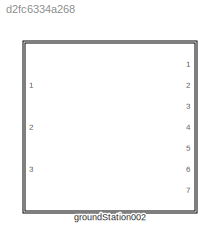
MODEL slx_d2fc6334a268
KIND library
CONFIG AbsTol = auto
CONFIG EnableMultiTasking = off
CONFIG FixedStep = auto
CONFIG MaxStep = auto
CONFIG MinStep = auto
CONFIG RelTol = 1e-3
CONFIG SampleTimeConstraint = Unconstrained
CONFIG SolverName = VariableStepAuto
CONFIG StartTime = 0.0
CONFIG StopTime = 10.0
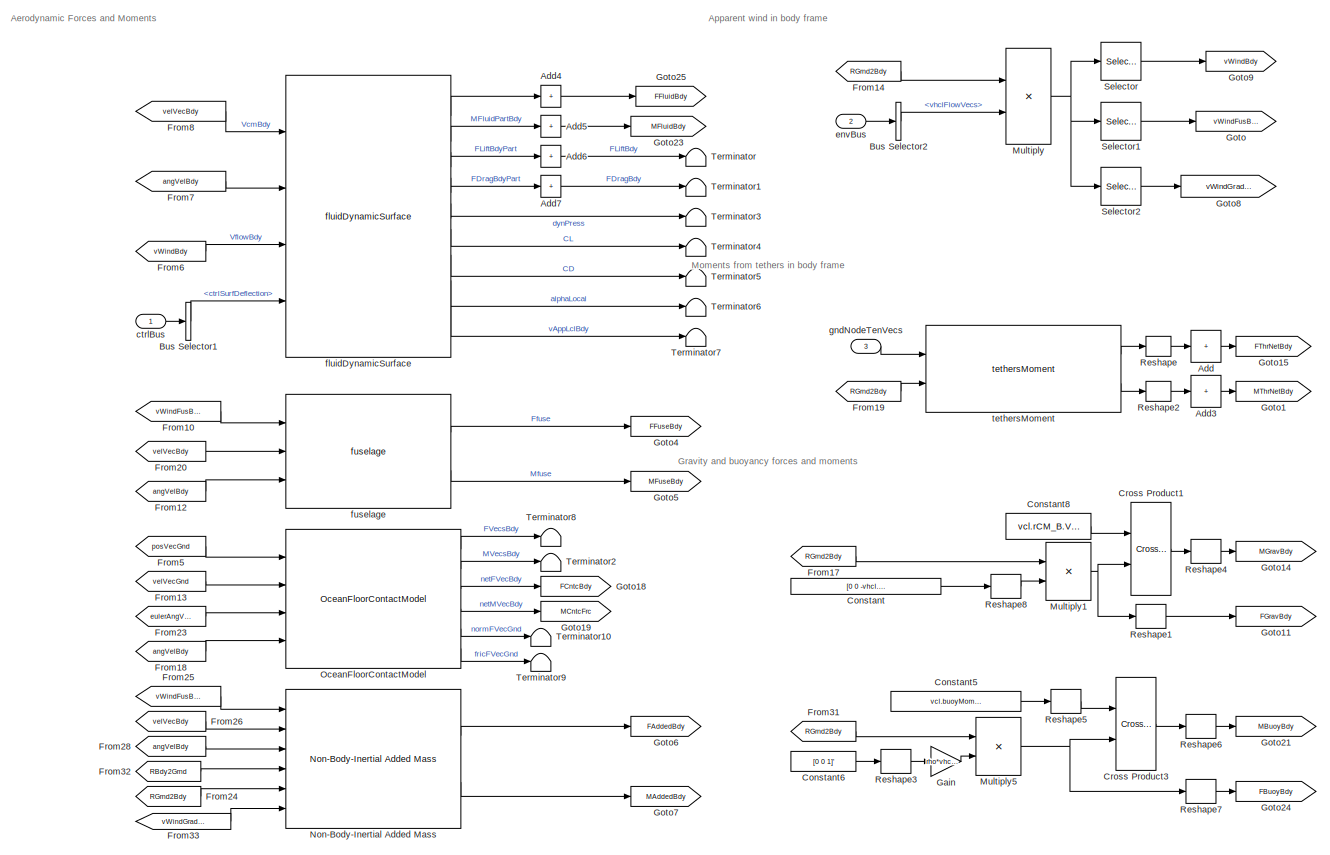
[diagram: groundStation002 - part 1/3, full width, top band]
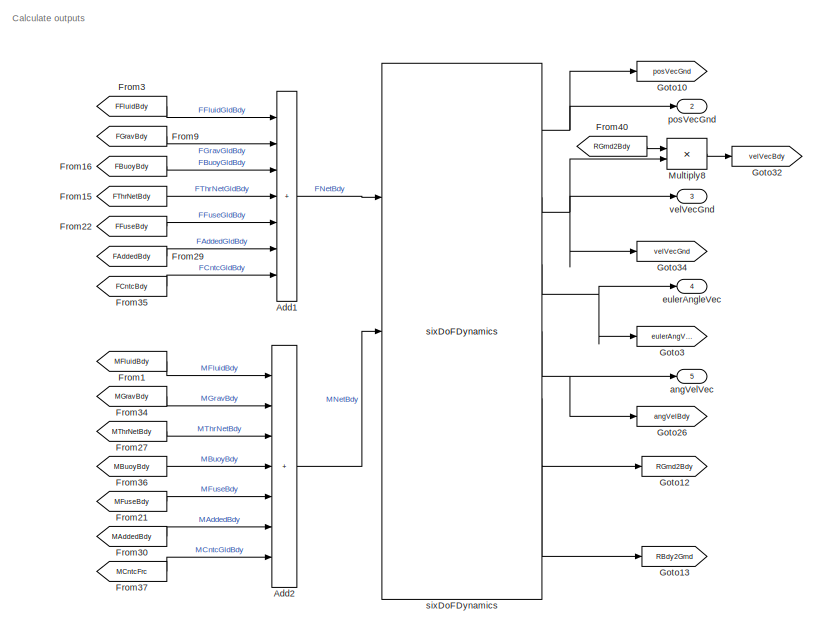
[diagram: groundStation002 - part 2/3, bottom left region]
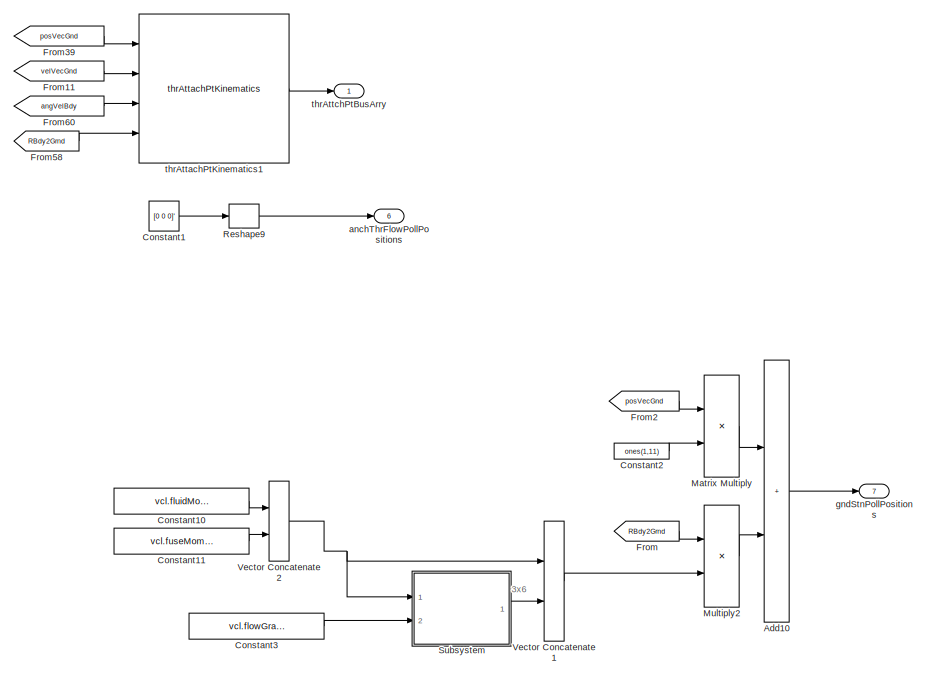
[diagram: groundStation002 - part 3/3, bottom right region]
BLOCK [SubSystem] groundStation002
  Ports = [3, 7]
  RequestExecContextInheritance = off
  VariantControl = VSS_vehicle_vehicleLETest
BLOCK [Sum] groundStation002/Add
  CollapseDim = 2
  CollapseMode = Specified dimension
  IconShape = rectangular
  Inputs = +
  Ports = [1, 1]
BLOCK [Sum] groundStation002/Add1
  IconShape = rectangular
  Inputs = +++++++
  Ports = [7, 1]
BLOCK [Sum] groundStation002/Add10
  IconShape = rectangular
  Ports = [2, 1]
BLOCK [Sum] groundStation002/Add2
  IconShape = rectangular
  Inputs = +++++++
  Ports = [7, 1]
BLOCK [Sum] groundStation002/Add3
  CollapseDim = 2
  CollapseMode = Specified dimension
  IconShape = rectangular
  Inputs = +
  Ports = [1, 1]
BLOCK [Sum] groundStation002/Add4
  CollapseDim = 2
  CollapseMode = Specified dimension
  IconShape = rectangular
  Inputs = 1
  Ports = [1, 1]
BLOCK [Sum] groundStation002/Add5
  CollapseDim = 2
  CollapseMode = Specified dimension
  IconShape = rectangular
  Inputs = 1
  Ports = [1, 1]
BLOCK [Sum] groundStation002/Add6
  CollapseDim = 2
  CollapseMode = Specified dimension
  IconShape = rectangular
  Inputs = 1
  Ports = [1, 1]
BLOCK [Sum] groundStation002/Add7
  CollapseDim = 2
  CollapseMode = Specified dimension
  IconShape = rectangular
  Inputs = 1
  Ports = [1, 1]
BLOCK [BusSelector] groundStation002/Bus Selector1
  OutputSignals = ctrlSurfDeflection
  Ports = [1, 1]
BLOCK [BusSelector] groundStation002/Bus Selector2
  OutputSignals = vhclFlowVecs
  Ports = [1, 1]
BLOCK [Constant] groundStation002/Constant
  Value = [0 0 -vhcl.mass.Value*grav]
BLOCK [Constant] groundStation002/Constant1
  Value = [0 0 0]'
BLOCK [Constant] groundStation002/Constant10
  Value = vcl.fluidMomentArms.Value
BLOCK [Constant] groundStation002/Constant11
  Value = vcl.fuseMomentArm.Value
BLOCK [Constant] groundStation002/Constant2
  Value = ones(1,11)
  VectorParams1D = off
BLOCK [Constant] groundStation002/Constant3
  Value = vcl.flowGradientDist.Value
BLOCK [Constant] groundStation002/Constant5
  Value = vcl.buoyMomentArm.Value
BLOCK [Constant] groundStation002/Constant6
  Value = [0 0 1]'
BLOCK [Constant] groundStation002/Constant8
  Value = vcl.rCM_B.Value
BLOCK [Reference] groundStation002/Cross Product1  REF=vrlib/Utilities/Cross Product
  Ports = [2, 1]
  SourceBlock = vrlib/Utilities/Cross Product
  SourceProductBaseCode = SL
  SourceType = Cross Product
BLOCK [Reference] groundStation002/Cross Product3  REF=vrlib/Utilities/Cross Product
  Ports = [2, 1]
  SourceBlock = vrlib/Utilities/Cross Product
  SourceProductBaseCode = SL
  SourceType = Cross Product
BLOCK [From] groundStation002/From
  GotoTag = RBdy2Grnd
BLOCK [From] groundStation002/From1
  GotoTag = MFluidBdy
BLOCK [From] groundStation002/From10
  GotoTag = vWindFusBdy
BLOCK [From] groundStation002/From11
  GotoTag = velVecGnd
BLOCK [From] groundStation002/From12
  GotoTag = angVelBdy
BLOCK [From] groundStation002/From13
  GotoTag = velVecGnd
BLOCK [From] groundStation002/From14
  GotoTag = RGrnd2Bdy
BLOCK [From] groundStation002/From15
  GotoTag = FThrNetBdy
BLOCK [From] groundStation002/From16
  GotoTag = FBuoyBdy
BLOCK [From] groundStation002/From17
  GotoTag = RGrnd2Bdy
BLOCK [From] groundStation002/From18
  GotoTag = angVelBdy
BLOCK [From] groundStation002/From19
  GotoTag = RGrnd2Bdy
BLOCK [From] groundStation002/From2
  GotoTag = posVecGnd
BLOCK [From] groundStation002/From20
  GotoTag = velVecBdy
BLOCK [From] groundStation002/From21
  GotoTag = MFuseBdy
BLOCK [From] groundStation002/From22
  GotoTag = FFuseBdy
BLOCK [From] groundStation002/From23
  GotoTag = eulerAngVec
BLOCK [From] groundStation002/From24
  GotoTag = RGrnd2Bdy
BLOCK [From] groundStation002/From25
  GotoTag = vWindFusBdy
BLOCK [From] groundStation002/From26
  GotoTag = velVecBdy
BLOCK [From] groundStation002/From27
  GotoTag = MThrNetBdy
BLOCK [From] groundStation002/From28
  GotoTag = angVelBdy
BLOCK [From] groundStation002/From29
  GotoTag = FAddedBdy
BLOCK [From] groundStation002/From3
  GotoTag = FFluidBdy
BLOCK [From] groundStation002/From30
  GotoTag = MAddedBdy
BLOCK [From] groundStation002/From31
  GotoTag = RGrnd2Bdy
BLOCK [From] groundStation002/From32
  GotoTag = RBdy2Grnd
BLOCK [From] groundStation002/From33
  GotoTag = vWindGradGrnd
BLOCK [From] groundStation002/From34
  GotoTag = MGravBdy
BLOCK [From] groundStation002/From35
  GotoTag = FCntcBdy
BLOCK [From] groundStation002/From36
  GotoTag = MBuoyBdy
BLOCK [From] groundStation002/From37
  GotoTag = MCntcFrc
BLOCK [From] groundStation002/From39
  GotoTag = posVecGnd
BLOCK [From] groundStation002/From40
  GotoTag = RGrnd2Bdy
BLOCK [From] groundStation002/From5
  GotoTag = posVecGnd
BLOCK [From] groundStation002/From58
  GotoTag = RBdy2Grnd
BLOCK [From] groundStation002/From6
  GotoTag = vWindBdy
BLOCK [From] groundStation002/From60
  GotoTag = angVelBdy
BLOCK [From] groundStation002/From7
  GotoTag = angVelBdy
BLOCK [From] groundStation002/From8
  GotoTag = velVecBdy
BLOCK [From] groundStation002/From9
  GotoTag = FGravBdy
BLOCK [Gain] groundStation002/Gain
  Gain = rho*vhcl.volume.Value*grav
BLOCK [Goto] groundStation002/Goto
  GotoTag = vWindFusBdy
BLOCK [Goto] groundStation002/Goto1
  GotoTag = MThrNetBdy
BLOCK [Goto] groundStation002/Goto10
  GotoTag = posVecGnd
BLOCK [Goto] groundStation002/Goto11
  GotoTag = FGravBdy
BLOCK [Goto] groundStation002/Goto12
  GotoTag = RGrnd2Bdy
BLOCK [Goto] groundStation002/Goto13
  GotoTag = RBdy2Grnd
BLOCK [Goto] groundStation002/Goto14
  GotoTag = MGravBdy
BLOCK [Goto] groundStation002/Goto15
  GotoTag = FThrNetBdy
BLOCK [Goto] groundStation002/Goto18
  GotoTag = FCntcBdy
BLOCK [Goto] groundStation002/Goto19
  GotoTag = MCntcFrc
BLOCK [Goto] groundStation002/Goto21
  GotoTag = MBuoyBdy
BLOCK [Goto] groundStation002/Goto23
  GotoTag = MFluidBdy
BLOCK [Goto] groundStation002/Goto24
  GotoTag = FBuoyBdy
BLOCK [Goto] groundStation002/Goto25
  GotoTag = FFluidBdy
BLOCK [Goto] groundStation002/Goto26
  GotoTag = angVelBdy
BLOCK [Goto] groundStation002/Goto3
  GotoTag = eulerAngVec
BLOCK [Goto] groundStation002/Goto32
  GotoTag = velVecBdy
BLOCK [Goto] groundStation002/Goto34
  GotoTag = velVecGnd
BLOCK [Goto] groundStation002/Goto4
  GotoTag = FFuseBdy
BLOCK [Goto] groundStation002/Goto5
  GotoTag = MFuseBdy
BLOCK [Goto] groundStation002/Goto6
  GotoTag = FAddedBdy
BLOCK [Goto] groundStation002/Goto7
  GotoTag = MAddedBdy
BLOCK [Goto] groundStation002/Goto8
  GotoTag = vWindGradGrnd
BLOCK [Goto] groundStation002/Goto9
  GotoTag = vWindBdy
BLOCK [Product] groundStation002/Matrix Multiply
  Multiplication = Matrix(*)
  Ports = [2, 1]
BLOCK [Product] groundStation002/Multiply
  Multiplication = Matrix(*)
  Ports = [2, 1]
BLOCK [Product] groundStation002/Multiply1
  Multiplication = Matrix(*)
  Ports = [2, 1]
BLOCK [Product] groundStation002/Multiply2
  Multiplication = Matrix(*)
  Ports = [2, 1]
BLOCK [Product] groundStation002/Multiply5
  Multiplication = Matrix(*)
  Ports = [2, 1]
BLOCK [Product] groundStation002/Multiply8
  Multiplication = Matrix(*)
  Ports = [2, 1]
BLOCK [Reference] groundStation002/Non-Body-Inertial Added Mass  REF=addedMass_cl/Non-Body-Inertial Added Mass
  Ports = [6, 2]
  SourceBlock = addedMass_cl/Non-Body-Inertial Added Mass
BLOCK [Reference] groundStation002/OceanFloorContactModel  REF=oceanFloorContactModel_ul/OceanFloorContactModel
  Ports = [4, 6]
  SourceBlock = oceanFloorContactModel_ul/OceanFloorContactModel
BLOCK [Reshape] groundStation002/Reshape
  OutputDimensionality = Customize
  OutputDimensions = [3 vcl.numTethers.Value]
  Ports = [1, 1]
BLOCK [Reshape] groundStation002/Reshape1
  OutputDimensionality = Column vector (2-D)
  Ports = [1, 1]
BLOCK [Reshape] groundStation002/Reshape2
  OutputDimensionality = Customize
  OutputDimensions = [3 vcl.numTethers.Value]
  Ports = [1, 1]
BLOCK [Reshape] groundStation002/Reshape3
  OutputDimensionality = Column vector (2-D)
  Ports = [1, 1]
BLOCK [Reshape] groundStation002/Reshape4
  OutputDimensionality = Column vector (2-D)
  Ports = [1, 1]
BLOCK [Reshape] groundStation002/Reshape5
  OutputDimensionality = Column vector (2-D)
  Ports = [1, 1]
BLOCK [Reshape] groundStation002/Reshape6
  OutputDimensionality = Column vector (2-D)
  Ports = [1, 1]
BLOCK [Reshape] groundStation002/Reshape7
  OutputDimensionality = Column vector (2-D)
  Ports = [1, 1]
BLOCK [Reshape] groundStation002/Reshape8
  OutputDimensionality = Column vector (2-D)
  Ports = [1, 1]
BLOCK [Reshape] groundStation002/Reshape9
  OutputDimensionality = Column vector (2-D)
  Ports = [1, 1]
BLOCK [Selector] groundStation002/Selector
  IndexOptions = Select all,Index vector (dialog)
  Indices = [1 3],1:4
  InputPortWidth = 3
  NumberOfDimensions = 2
  OutputSizes = 1,1
  Ports = [1, 1]
BLOCK [Selector] groundStation002/Selector1
  IndexOptions = Select all,Index vector (dialog)
  Indices = [1 3],5
  InputPortWidth = 3
  NumberOfDimensions = 2
  OutputSizes = 1,1
  Ports = [1, 1]
BLOCK [Selector] groundStation002/Selector2
  IndexOptions = Select all,Index vector (dialog)
  Indices = [1 3],6:11
  InputPortWidth = 3
  NumberOfDimensions = 2
  OutputSizes = 1,1
  Ports = [1, 1]
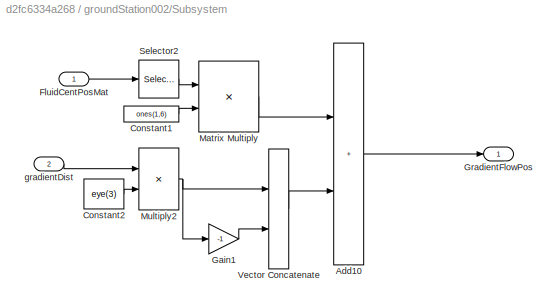
BLOCK [SubSystem] groundStation002/Subsystem
  Ports = [2, 1]
  RequestExecContextInheritance = off
BLOCK [Sum] groundStation002/Subsystem/Add10
  IconShape = rectangular
  Ports = [2, 1]
BLOCK [Constant] groundStation002/Subsystem/Constant1
  Value = ones(1,6)
  VectorParams1D = off
BLOCK [Constant] groundStation002/Subsystem/Constant2
  Value = eye(3)
BLOCK [Inport] groundStation002/Subsystem/FluidCentPosMat
BLOCK [Gain] groundStation002/Subsystem/Gain1
  Gain = -1
BLOCK [Outport] groundStation002/Subsystem/GradientFlowPos
  VectorParamsAs1DForOutWhenUnconnected = off
BLOCK [Product] groundStation002/Subsystem/Matrix Multiply
  Multiplication = Matrix(*)
  Ports = [2, 1]
BLOCK [Product] groundStation002/Subsystem/Multiply2
  Ports = [2, 1]
BLOCK [Selector] groundStation002/Subsystem/Selector2
  IndexOptions = Select all,Index vector (dialog)
  Indices = [1 3],5
  InputPortWidth = 3
  NumberOfDimensions = 2
  OutputSizes = 1,1
  Ports = [1, 1]
BLOCK [Concatenate] groundStation002/Subsystem/Vector Concatenate
  ConcatenateDimension = 2
  Mode = Multidimensional array
  Ports = [2, 1]
BLOCK [Inport] groundStation002/Subsystem/gradientDist
  Port = 2
BLOCK [Terminator] groundStation002/Terminator
BLOCK [Terminator] groundStation002/Terminator1
BLOCK [Terminator] groundStation002/Terminator10
BLOCK [Terminator] groundStation002/Terminator2
BLOCK [Terminator] groundStation002/Terminator3
BLOCK [Terminator] groundStation002/Terminator4
BLOCK [Terminator] groundStation002/Terminator5
BLOCK [Terminator] groundStation002/Terminator6
BLOCK [Terminator] groundStation002/Terminator7
BLOCK [Terminator] groundStation002/Terminator8
BLOCK [Terminator] groundStation002/Terminator9
BLOCK [Concatenate] groundStation002/Vector Concatenate1
  ConcatenateDimension = 2
  Mode = Multidimensional array
  Ports = [2, 1]
BLOCK [Concatenate] groundStation002/Vector Concatenate2
  ConcatenateDimension = 2
  Mode = Multidimensional array
  Ports = [2, 1]
BLOCK [Outport] groundStation002/anchThrFlowPollPositions
  Port = 6
  VectorParamsAs1DForOutWhenUnconnected = off
BLOCK [Outport] groundStation002/angVelVec
  Port = 5
  VectorParamsAs1DForOutWhenUnconnected = off
BLOCK [Inport] groundStation002/ctrlBus
  OutDataTypeStr = Bus: gndStnCtrlBus
BLOCK [Inport] groundStation002/envBus
  OutDataTypeStr = Bus: envBus
  Port = 2
BLOCK [Outport] groundStation002/eulerAngleVec
  Port = 4
  VectorParamsAs1DForOutWhenUnconnected = off
BLOCK [Reference] groundStation002/fluidDynamicSurface  REF=fluidDynamicSurface_cl/fluidDynamicSurface
  Ports = [4, 10]
  SourceBlock = fluidDynamicSurface_cl/fluidDynamicSurface
BLOCK [Reference] groundStation002/fuselage  REF=fuselage_cl/fuselage  (lib defined in slx_45091b95913d, slx_54a95fec013f)
  Ports = [3, 2]
  SourceBlock = fuselage_cl/fuselage
BLOCK [Inport] groundStation002/gndNodeTenVecs
  Port = 3
BLOCK [Outport] groundStation002/gndStnPollPositions
  Port = 7
  VectorParamsAs1DForOutWhenUnconnected = off
BLOCK [Outport] groundStation002/posVecGnd
  Port = 2
  VectorParamsAs1DForOutWhenUnconnected = off
BLOCK [Reference] groundStation002/sixDoFDynamics  REF=sixDoFDynamics_cl/sixDoFDynamics
  Ports = [3, 7]
  SourceBlock = sixDoFDynamics_cl/sixDoFDynamics
BLOCK [Reference] groundStation002/tethersMoment  REF=tethersMoment_cl/tethersMoment
  Ports = [2, 2]
  SourceBlock = tethersMoment_cl/tethersMoment
BLOCK [Reference] groundStation002/thrAttachPtKinematics1  REF=thrAttachPtKinematics_ul/thrAttachPtKinematics
  Ports = [4, 1]
  SourceBlock = thrAttachPtKinematics_ul/thrAttachPtKinematics
BLOCK [Outport] groundStation002/thrAttchPtBusArry
  VectorParamsAs1DForOutWhenUnconnected = off
BLOCK [Outport] groundStation002/velVecGnd
  Port = 3
  VectorParamsAs1DForOutWhenUnconnected = off
ANNOTATION groundStation002: 3x6
ANNOTATION groundStation002: Aerodynamic Forces and Moments
ANNOTATION groundStation002: Apparent wind in body frame
ANNOTATION groundStation002: Calculate outputs
ANNOTATION groundStation002: Gravity and buoyancy forces and moments
ANNOTATION groundStation002: Moments from tethers in body frame
LINE groundStation002/Add10:1 -> groundStation002/gndStnPollPositions:1
LINE groundStation002/Add1:1 -> groundStation002/sixDoFDynamics:1
LINE groundStation002/Add2:1 -> groundStation002/sixDoFDynamics:2
LINE groundStation002/Add3:1 -> groundStation002/Goto1:1
LINE groundStation002/Add4:1 -> groundStation002/Goto25:1
LINE groundStation002/Add5:1 -> groundStation002/Goto23:1
LINE groundStation002/Add6:1 -> groundStation002/Terminator:1
LINE groundStation002/Add7:1 -> groundStation002/Terminator1:1
LINE groundStation002/Add:1 -> groundStation002/Goto15:1
LINE groundStation002/Bus Selector1:1 -> groundStation002/fluidDynamicSurface:4
LINE groundStation002/Bus Selector2:1 -> groundStation002/Multiply:2
LINE groundStation002/Constant10:1 -> groundStation002/Vector Concatenate2:1
LINE groundStation002/Constant11:1 -> groundStation002/Vector Concatenate2:2
LINE groundStation002/Constant1:1 -> groundStation002/Reshape9:1
LINE groundStation002/Constant2:1 -> groundStation002/Matrix Multiply:2
LINE groundStation002/Constant3:1 -> groundStation002/Subsystem:2
LINE groundStation002/Constant5:1 -> groundStation002/Reshape5:1
LINE groundStation002/Constant6:1 -> groundStation002/Reshape3:1
LINE groundStation002/Constant8:1 -> groundStation002/Cross Product1:1
LINE groundStation002/Constant:1 -> groundStation002/Reshape8:1
LINE groundStation002/Cross Product1:1 -> groundStation002/Reshape4:1
LINE groundStation002/Cross Product3:1 -> groundStation002/Reshape6:1
LINE groundStation002/From10:1 -> groundStation002/fuselage:1
LINE groundStation002/From11:1 -> groundStation002/thrAttachPtKinematics1:2
LINE groundStation002/From12:1 -> groundStation002/fuselage:3
LINE groundStation002/From13:1 -> groundStation002/OceanFloorContactModel:2
LINE groundStation002/From14:1 -> groundStation002/Multiply:1
LINE groundStation002/From15:1 -> groundStation002/Add1:4
LINE groundStation002/From16:1 -> groundStation002/Add1:3
LINE groundStation002/From17:1 -> groundStation002/Multiply1:1
LINE groundStation002/From18:1 -> groundStation002/OceanFloorContactModel:4
LINE groundStation002/From19:1 -> groundStation002/tethersMoment:2
LINE groundStation002/From1:1 -> groundStation002/Add2:1
LINE groundStation002/From20:1 -> groundStation002/fuselage:2
LINE groundStation002/From21:1 -> groundStation002/Add2:5
LINE groundStation002/From22:1 -> groundStation002/Add1:5
LINE groundStation002/From23:1 -> groundStation002/OceanFloorContactModel:3
LINE groundStation002/From24:1 -> groundStation002/Non-Body-Inertial Added Mass:5
LINE groundStation002/From25:1 -> groundStation002/Non-Body-Inertial Added Mass:1
LINE groundStation002/From26:1 -> groundStation002/Non-Body-Inertial Added Mass:2
LINE groundStation002/From27:1 -> groundStation002/Add2:3
LINE groundStation002/From28:1 -> groundStation002/Non-Body-Inertial Added Mass:3
LINE groundStation002/From29:1 -> groundStation002/Add1:6
LINE groundStation002/From2:1 -> groundStation002/Matrix Multiply:1
LINE groundStation002/From30:1 -> groundStation002/Add2:6
LINE groundStation002/From31:1 -> groundStation002/Multiply5:1
LINE groundStation002/From32:1 -> groundStation002/Non-Body-Inertial Added Mass:4
LINE groundStation002/From33:1 -> groundStation002/Non-Body-Inertial Added Mass:6
LINE groundStation002/From34:1 -> groundStation002/Add2:2
LINE groundStation002/From35:1 -> groundStation002/Add1:7
LINE groundStation002/From36:1 -> groundStation002/Add2:4
LINE groundStation002/From37:1 -> groundStation002/Add2:7
LINE groundStation002/From39:1 -> groundStation002/thrAttachPtKinematics1:1
LINE groundStation002/From3:1 -> groundStation002/Add1:1
LINE groundStation002/From40:1 -> groundStation002/Multiply8:1
LINE groundStation002/From58:1 -> groundStation002/thrAttachPtKinematics1:4
LINE groundStation002/From5:1 -> groundStation002/OceanFloorContactModel:1
LINE groundStation002/From60:1 -> groundStation002/thrAttachPtKinematics1:3
LINE groundStation002/From6:1 -> groundStation002/fluidDynamicSurface:3
LINE groundStation002/From7:1 -> groundStation002/fluidDynamicSurface:2
LINE groundStation002/From8:1 -> groundStation002/fluidDynamicSurface:1
LINE groundStation002/From9:1 -> groundStation002/Add1:2
LINE groundStation002/From:1 -> groundStation002/Multiply2:1
LINE groundStation002/Gain:1 -> groundStation002/Multiply5:2
LINE groundStation002/Matrix Multiply:1 -> groundStation002/Add10:1
NET groundStation002/Multiply1:1 -> groundStation002/Cross Product1:2, groundStation002/Reshape1:1
LINE groundStation002/Multiply2:1 -> groundStation002/Add10:2
NET groundStation002/Multiply5:1 -> groundStation002/Cross Product3:2, groundStation002/Reshape7:1
LINE groundStation002/Multiply8:1 -> groundStation002/Goto32:1
NET groundStation002/Multiply:1 -> groundStation002/Selector1:1, groundStation002/Selector2:1, groundStation002/Selector:1
LINE groundStation002/Non-Body-Inertial Added Mass:1 -> groundStation002/Goto6:1
LINE groundStation002/Non-Body-Inertial Added Mass:2 -> groundStation002/Goto7:1
LINE groundStation002/OceanFloorContactModel:1 -> groundStation002/Terminator8:1
LINE groundStation002/OceanFloorContactModel:2 -> groundStation002/Terminator2:1
LINE groundStation002/OceanFloorContactModel:3 -> groundStation002/Goto18:1
LINE groundStation002/OceanFloorContactModel:4 -> groundStation002/Goto19:1
LINE groundStation002/OceanFloorContactModel:5 -> groundStation002/Terminator10:1
LINE groundStation002/OceanFloorContactModel:6 -> groundStation002/Terminator9:1
LINE groundStation002/Reshape1:1 -> groundStation002/Goto11:1
LINE groundStation002/Reshape2:1 -> groundStation002/Add3:1
LINE groundStation002/Reshape3:1 -> groundStation002/Gain:1
LINE groundStation002/Reshape4:1 -> groundStation002/Goto14:1
LINE groundStation002/Reshape5:1 -> groundStation002/Cross Product3:1
LINE groundStation002/Reshape6:1 -> groundStation002/Goto21:1
LINE groundStation002/Reshape7:1 -> groundStation002/Goto24:1
LINE groundStation002/Reshape8:1 -> groundStation002/Multiply1:2
LINE groundStation002/Reshape9:1 -> groundStation002/anchThrFlowPollPositions:1
LINE groundStation002/Reshape:1 -> groundStation002/Add:1
LINE groundStation002/Selector1:1 -> groundStation002/Goto:1
LINE groundStation002/Selector2:1 -> groundStation002/Goto8:1
LINE groundStation002/Selector:1 -> groundStation002/Goto9:1
LINE groundStation002/Subsystem/Add10:1 -> groundStation002/Subsystem/GradientFlowPos:1
LINE groundStation002/Subsystem/Constant1:1 -> groundStation002/Subsystem/Matrix Multiply:2
LINE groundStation002/Subsystem/Constant2:1 -> groundStation002/Subsystem/Multiply2:2
LINE groundStation002/Subsystem/FluidCentPosMat:1 -> groundStation002/Subsystem/Selector2:1
LINE groundStation002/Subsystem/Gain1:1 -> groundStation002/Subsystem/Vector Concatenate:2
LINE groundStation002/Subsystem/Matrix Multiply:1 -> groundStation002/Subsystem/Add10:1
NET groundStation002/Subsystem/Multiply2:1 -> groundStation002/Subsystem/Gain1:1, groundStation002/Subsystem/Vector Concatenate:1
LINE groundStation002/Subsystem/Selector2:1 -> groundStation002/Subsystem/Matrix Multiply:1
LINE groundStation002/Subsystem/Vector Concatenate:1 -> groundStation002/Subsystem/Add10:2
LINE groundStation002/Subsystem/gradientDist:1 -> groundStation002/Subsystem/Multiply2:1
LINE groundStation002/Subsystem:1 -> groundStation002/Vector Concatenate1:2
LINE groundStation002/Vector Concatenate1:1 -> groundStation002/Multiply2:2
NET groundStation002/Vector Concatenate2:1 -> groundStation002/Subsystem:1, groundStation002/Vector Concatenate1:1
LINE groundStation002/ctrlBus:1 -> groundStation002/Bus Selector1:1
LINE groundStation002/envBus:1 -> groundStation002/Bus Selector2:1
LINE groundStation002/fluidDynamicSurface:1 -> groundStation002/Add4:1
LINE groundStation002/fluidDynamicSurface:2 -> groundStation002/Add5:1
LINE groundStation002/fluidDynamicSurface:3 -> groundStation002/Add6:1
LINE groundStation002/fluidDynamicSurface:4 -> groundStation002/Add7:1
LINE groundStation002/fluidDynamicSurface:5 -> groundStation002/Terminator3:1
LINE groundStation002/fluidDynamicSurface:6 -> groundStation002/Terminator4:1
LINE groundStation002/fluidDynamicSurface:7 -> groundStation002/Terminator5:1
LINE groundStation002/fluidDynamicSurface:8 -> groundStation002/Terminator6:1
LINE groundStation002/fluidDynamicSurface:9 -> groundStation002/Terminator7:1
LINE groundStation002/fuselage:1 -> groundStation002/Goto4:1
LINE groundStation002/fuselage:2 -> groundStation002/Goto5:1
LINE groundStation002/gndNodeTenVecs:1 -> groundStation002/tethersMoment:1
NET groundStation002/sixDoFDynamics:1 -> groundStation002/Goto10:1, groundStation002/posVecGnd:1
NET groundStation002/sixDoFDynamics:2 -> groundStation002/Goto34:1, groundStation002/Multiply8:2, groundStation002/velVecGnd:1
NET groundStation002/sixDoFDynamics:3 -> groundStation002/Goto3:1, groundStation002/eulerAngleVec:1
NET groundStation002/sixDoFDynamics:4 -> groundStation002/Goto26:1, groundStation002/angVelVec:1
LINE groundStation002/sixDoFDynamics:5 -> groundStation002/Goto12:1
LINE groundStation002/sixDoFDynamics:6 -> groundStation002/Goto13:1
LINE groundStation002/tethersMoment:1 -> groundStation002/Reshape:1
LINE groundStation002/tethersMoment:2 -> groundStation002/Reshape2:1
LINE groundStation002/thrAttachPtKinematics1:1 -> groundStation002/thrAttchPtBusArry:1
note: NET lines group one-source signal fan-out (src -> all destinations, sorted); 1:1 wires keep LINE
